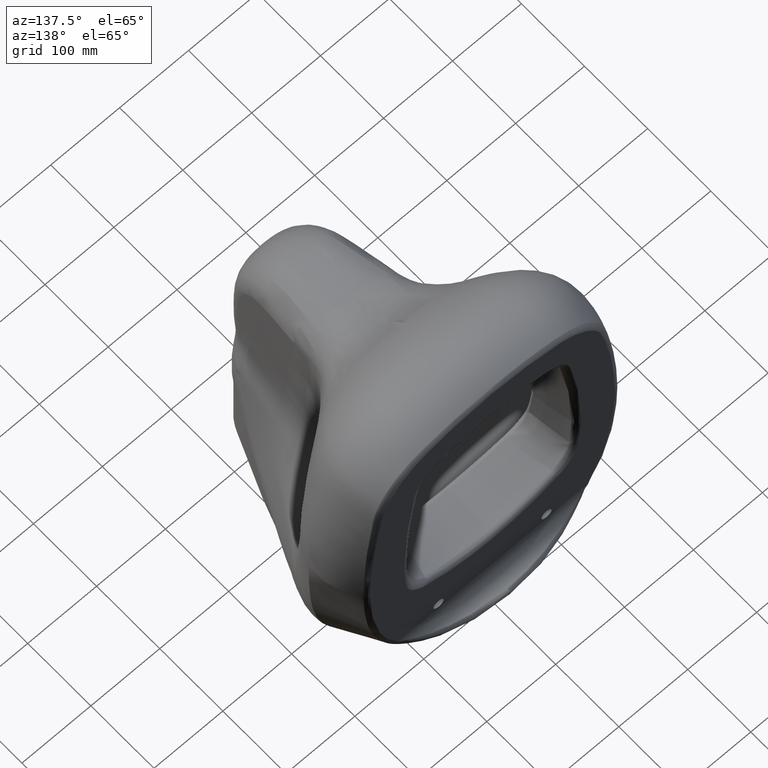
[diagram: clean part render]
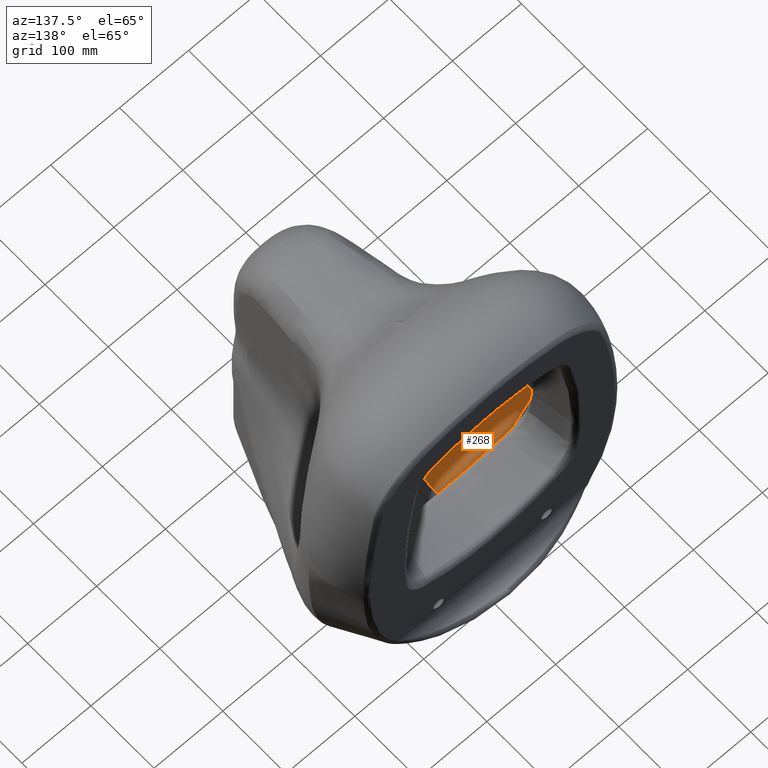
[diagram: same view with one face highlighted and labeled with its STEP entity id]
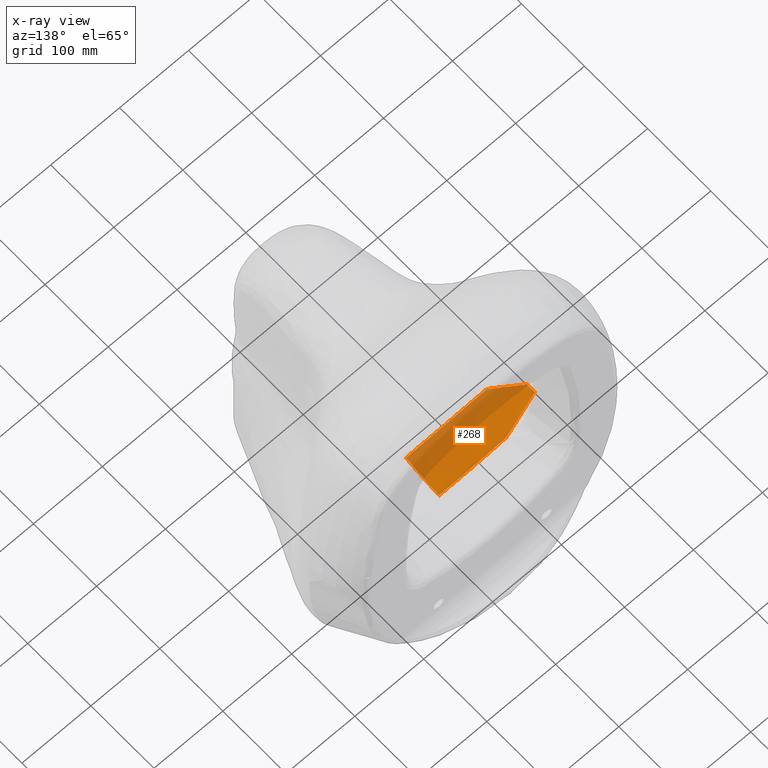
[diagram: x-ray of the same camera — body ghosted, the highlighted face saturated]
A machine part, auxiliary view. The second image highlights one B-rep face of the part: STEP entity #268.
The next image is the same camera in x-ray: the body ghosted, the highlighted face saturated — about 47% of this face is hidden behind the body in this view.
In plain terms, the highlighted face is a freeform B-spline surface patch.
Its self-contained STEP definition (entity closure, byte-faithful):
#268=ADVANCED_FACE('',(#488),#396,.T.);
#396=B_SPLINE_SURFACE_WITH_KNOTS('',3,3,((#16645,#16646,#16647,#16648,#16649,
#16650,#16651,#16652,#16653,#16654,#16655,#16656,#16657,#16658,#16659,#16660,
#16661,#16662,#16663,#16664,#16665,#16666,#16667),(#16668,#16669,#16670,
#16671,#16672,#16673,#16674,#16675,#16676,#16677,#16678,#16679,#16680,#16681,
#16682,#16683,#16684,#16685,#16686,#16687,#16688,#16689,#16690),(#16691,
#16692,#16693,#16694,#16695,#16696,#16697,#16698,#16699,#16700,#16701,#16702,
#16703,#16704,#16705,#16706,#16707,#16708,#16709,#16710,#16711,#16712,#16713),
(#16714,#16715,#16716,#16717,#16718,#16719,#16720,#16721,#16722,#16723,
#16724,#16725,#16726,#16727,#16728,#16729,#16730,#16731,#16732,#16733,#16734,
#16735,#16736),(#16737,#16738,#16739,#16740,#16741,#16742,#16743,#16744,
#16745,#16746,#16747,#16748,#16749,#16750,#16751,#16752,#16753,#16754,#16755,
#16756,#16757,#16758,#16759),(#16760,#16761,#16762,#16763,#16764,#16765,
#16766,#16767,#16768,#16769,#16770,#16771,#16772,#16773,#16774,#16775,#16776,
#16777,#16778,#16779,#16780,#16781,#16782),(#16783,#16784,#16785,#16786,
#16787,#16788,#16789,#16790,#16791,#16792,#16793,#16794,#16795,#16796,#16797,
#16798,#16799,#16800,#16801,#16802,#16803,#16804,#16805),(#16806,#16807,
#16808,#16809,#16810,#16811,#16812,#16813,#16814,#16815,#16816,#16817,#16818,
#16819,#16820,#16821,#16822,#16823,#16824,#16825,#16826,#16827,#16828),
(#16829,#16830,#16831,#16832,#16833,#16834,#16835,#16836,#16837,#16838,
#16839,#16840,#16841,#16842,#16843,#16844,#16845,#16846,#16847,#16848,#16849,
#16850,#16851),(#16852,#16853,#16854,#16855,#16856,#16857,#16858,#16859,
#16860,#16861,#16862,#16863,#16864,#16865,#16866,#16867,#16868,#16869,#16870,
#16871,#16872,#16873,#16874),(#16875,#16876,#16877,#16878,#16879,#16880,
#16881,#16882,#16883,#16884,#16885,#16886,#16887,#16888,#16889,#16890,#16891,
#16892,#16893,#16894,#16895,#16896,#16897),(#16898,#16899,#16900,#16901,
#16902,#16903,#16904,#16905,#16906,#16907,#16908,#16909,#16910,#16911,#16912,
#16913,#16914,#16915,#16916,#16917,#16918,#16919,#16920),(#16921,#16922,
#16923,#16924,#16925,#16926,#16927,#16928,#16929,#16930,#16931,#16932,#16933,
#16934,#16935,#16936,#16937,#16938,#16939,#16940,#16941,#16942,#16943),
(#16944,#16945,#16946,#16947,#16948,#16949,#16950,#16951,#16952,#16953,
#16954,#16955,#16956,#16957,#16958,#16959,#16960,#16961,#16962,#16963,#16964,
#16965,#16966),(#16967,#16968,#16969,#16970,#16971,#16972,#16973,#16974,
#16975,#16976,#16977,#16978,#16979,#16980,#16981,#16982,#16983,#16984,#16985,
#16986,#16987,#16988,#16989),(#16990,#16991,#16992,#16993,#16994,#16995,
#16996,#16997,#16998,#16999,#17000,#17001,#17002,#17003,#17004,#17005,#17006,
#17007,#17008,#17009,#17010,#17011,#17012),(#17013,#17014,#17015,#17016,
#17017,#17018,#17019,#17020,#17021,#17022,#17023,#17024,#17025,#17026,#17027,
#17028,#17029,#17030,#17031,#17032,#17033,#17034,#17035),(#17036,#17037,
#17038,#17039,#17040,#17041,#17042,#17043,#17044,#17045,#17046,#17047,#17048,
#17049,#17050,#17051,#17052,#17053,#17054,#17055,#17056,#17057,#17058),
(#17059,#17060,#17061,#17062,#17063,#17064,#17065,#17066,#17067,#17068,
#17069,#17070,#17071,#17072,#17073,#17074,#17075,#17076,#17077,#17078,#17079,
#17080,#17081),(#17082,#17083,#17084,#17085,#17086,#17087,#17088,#17089,
#17090,#17091,#17092,#17093,#17094,#17095,#17096,#17097,#17098,#17099,#17100,
#17101,#17102,#17103,#17104),(#17105,#17106,#17107,#17108,#17109,#17110,
#17111,#17112,#17113,#17114,#17115,#17116,#17117,#17118,#17119,#17120,#17121,
#17122,#17123,#17124,#17125,#17126,#17127),(#17128,#17129,#17130,#17131,
#17132,#17133,#17134,#17135,#17136,#17137,#17138,#17139,#17140,#17141,#17142,
#17143,#17144,#17145,#17146,#17147,#17148,#17149,#17150),(#17151,#17152,
#17153,#17154,#17155,#17156,#17157,#17158,#17159,#17160,#17161,#17162,#17163,
#17164,#17165,#17166,#17167,#17168,#17169,#17170,#17171,#17172,#17173),
(#17174,#17175,#17176,#17177,#17178,#17179,#17180,#17181,#17182,#17183,
#17184,#17185,#17186,#17187,#17188,#17189,#17190,#17191,#17192,#17193,#17194,
#17195,#17196),(#17197,#17198,#17199,#17200,#17201,#17202,#17203,#17204,
#17205,#17206,#17207,#17208,#17209,#17210,#17211,#17212,#17213,#17214,#17215,
#17216,#17217,#17218,#17219)),.UNSPECIFIED.,.F.,.F.,.F.,(4,1,1,1,1,1,1,
1,1,1,1,1,2,2,2,2,2,4),(4,2,2,2,2,2,1,1,1,2,2,2,4),(0.,0.00172506405028259,
0.00386850730206069,0.00494022892794975,0.0060119505538388,0.00708367217972785,
0.0081553938056169,0.010298837057395,0.0124422803091731,0.0145857235609512,
0.0167291668127293,0.0188726100645074,0.03125,0.0625,0.125,0.25,0.5,1.),
(0.,0.5,0.666666666666667,0.75,0.777777777777778,0.787037037037037,0.790113406413279,
0.793189775789522,0.795097293582978,0.796296296296296,0.805555555555555,
0.833333333333333,1.),.UNSPECIFIED.);
#488=FACE_OUTER_BOUND('',#637,.T.);
#637=EDGE_LOOP('',(#1018,#1019,#1020,#1021,#1022,#1023));
#1018=ORIENTED_EDGE('',*,*,#2321,.F.);
#1019=ORIENTED_EDGE('',*,*,#2333,.T.);
#1020=ORIENTED_EDGE('',*,*,#2335,.T.);
#1021=ORIENTED_EDGE('',*,*,#2336,.T.);
#1022=ORIENTED_EDGE('',*,*,#2337,.F.);
#1023=ORIENTED_EDGE('',*,*,#2338,.F.);
#1923=VERTEX_POINT('',#15624);
#1925=VERTEX_POINT('',#15630);
#1928=VERTEX_POINT('',#16591);
#1929=VERTEX_POINT('',#16616);
#1930=VERTEX_POINT('',#16632);
#1931=VERTEX_POINT('',#16637);
#2321=EDGE_CURVE('',#1923,#1925,#2815,.T.);
#2333=EDGE_CURVE('',#1923,#1928,#2822,.T.);
#2335=EDGE_CURVE('',#1928,#1929,#2824,.T.);
#2336=EDGE_CURVE('',#1929,#1930,#2825,.T.);
#2337=EDGE_CURVE('',#1931,#1930,#2826,.T.);
#2338=EDGE_CURVE('',#1925,#1931,#2827,.T.);
#2815=B_SPLINE_CURVE_WITH_KNOTS('',3,(#15626,#15627,#15628,#15629),
 .UNSPECIFIED.,.F.,.F.,(4,4),(0.,1.),.UNSPECIFIED.);
#2822=B_SPLINE_CURVE_WITH_KNOTS('',3,(#16587,#16588,#16589,#16590),
 .UNSPECIFIED.,.F.,.F.,(4,4),(0.,1.),.UNSPECIFIED.);
#2824=B_SPLINE_CURVE_WITH_KNOTS('',3,(#16612,#16613,#16614,#16615),
 .UNSPECIFIED.,.F.,.F.,(4,4),(0.,1.),.UNSPECIFIED.);
#2825=B_SPLINE_CURVE_WITH_KNOTS('',3,(#16617,#16618,#16619,#16620,#16621,
#16622,#16623,#16624,#16625,#16626,#16627,#16628,#16629,#16630,#16631),
 .UNSPECIFIED.,.F.,.F.,(4,2,2,1,1,1,2,2,4),(0.,0.25000000000002,0.375000000000032,
0.437500000000036,0.468750000000038,0.484375000000039,0.492187500000039,
0.500000000000039,1.),.UNSPECIFIED.);
#2826=B_SPLINE_CURVE_WITH_KNOTS('',3,(#16633,#16634,#16635,#16636),
 .UNSPECIFIED.,.F.,.F.,(4,4),(0.,1.),.UNSPECIFIED.);
#2827=B_SPLINE_CURVE_WITH_KNOTS('',3,(#16638,#16639,#16640,#16641,#16642,
#16643,#16644),.UNSPECIFIED.,.F.,.F.,(4,1,1,1,4),(0.,0.196244595979454,
0.570431441270327,0.944618286561199,1.),.UNSPECIFIED.);
#15624=CARTESIAN_POINT('',(-96.6796917836861,-83.6167965677604,131.947293405763));
#15626=CARTESIAN_POINT('',(-96.670303917473,-83.6193053576096,131.937685111232));
#15627=CARTESIAN_POINT('',(-64.7038128415456,-84.1777637505301,126.253205793809));
#15628=CARTESIAN_POINT('',(-32.478198077628,-84.688892927581,123.447074671174));
#15629=CARTESIAN_POINT('',(0.,-84.7130588866251,123.390651825376));
#15630=CARTESIAN_POINT('',(-4.41342831099006E-6,-84.7138917621588,123.390767214637));
#16587=CARTESIAN_POINT('',(-96.6766797129311,-83.6210140730452,131.938954699163));
#16588=CARTESIAN_POINT('',(-116.546116152598,-88.9460915725251,135.895564980267));
#16589=CARTESIAN_POINT('',(-134.771912631746,-93.8210673947518,140.24404053002));
#16590=CARTESIAN_POINT('',(-151.383646953813,-98.2727827650817,144.416044677054));
#16591=CARTESIAN_POINT('',(-151.383717961144,-98.270587177193,144.418104736713));
#16612=CARTESIAN_POINT('',(-151.391673551863,-98.2726975280466,144.418037709969));
#16613=CARTESIAN_POINT('',(-151.258292297123,-103.866963653753,144.442049623537));
#16614=CARTESIAN_POINT('',(-151.164385550273,-108.035330476261,144.613672258318));
#16615=CARTESIAN_POINT('',(-151.138217783084,-110.77685339802,144.765455068485));
#16616=CARTESIAN_POINT('',(-151.138217783083,-110.77685339802,144.765455068485));
#16617=CARTESIAN_POINT('',(-151.138217783084,-110.77685339802,144.765455068485));
#16618=CARTESIAN_POINT('',(-148.762933659037,-112.854626978728,144.36195222449));
#16619=CARTESIAN_POINT('',(-146.169582136459,-115.004322222876,143.986294965312));
#16620=CARTESIAN_POINT('',(-141.945699208007,-118.331707850247,143.504065524694));
#16621=CARTESIAN_POINT('',(-140.482099034542,-119.45791315954,143.356943700609));
#16622=CARTESIAN_POINT('',(-138.202501197928,-121.171779763985,143.162093250533));
#16623=CARTESIAN_POINT('',(-137.041654426943,-122.034848782459,143.071129822311));
#16624=CARTESIAN_POINT('',(-135.65035594581,-123.052225564078,142.97753348722));
#16625=CARTESIAN_POINT('',(-134.945445967578,-123.563491965068,142.934022420507));
#16626=CARTESIAN_POINT('',(-134.641355530191,-123.783154439081,142.916095886868));
#16627=CARTESIAN_POINT('',(-134.438187016369,-123.929717465187,142.904306962849));
#16628=CARTESIAN_POINT('',(-134.29042067449,-124.036126581929,142.895911616387));
#16629=CARTESIAN_POINT('',(-130.64622181497,-126.657949616425,142.691194236146));
#16630=CARTESIAN_POINT('',(-124.720782743385,-130.763835313001,142.415344697377));
#16631=CARTESIAN_POINT('',(-116.346737894514,-136.272469117401,142.857745050875));
#16632=CARTESIAN_POINT('',(-116.346737897709,-136.272469117325,142.857745051276));
#16633=CARTESIAN_POINT('',(-2.84240216296671E-14,-137.449785272266,135.436430618839));
#16634=CARTESIAN_POINT('',(-38.8920483898696,-137.585829829607,135.532783648961));
#16635=CARTESIAN_POINT('',(-77.9749497351466,-137.191398668927,138.047863945005));
#16636=CARTESIAN_POINT('',(-116.346737897709,-136.272469117325,142.857745051276));
#16637=CARTESIAN_POINT('',(-2.84240216296671E-14,-137.449785272266,135.436430618839));
#16638=CARTESIAN_POINT('',(1.35861191697791E-5,-84.713890855734,123.390769268267));
#16639=CARTESIAN_POINT('',(1.35939718008003E-5,-88.2247357307372,123.886266217132));
#16640=CARTESIAN_POINT('',(1.36154338565906E-5,-98.4158573364791,125.42440612559));
#16641=CARTESIAN_POINT('',(1.36426967552343E-5,-115.199202774218,128.563169040336));
#16642=CARTESIAN_POINT('',(1.36490112325059E-5,-129.225153972544,132.420430786436));
#16643=CARTESIAN_POINT('',(1.36435076706278E-5,-136.513790461444,135.083197971494));
#16644=CARTESIAN_POINT('',(1.36426503293338E-5,-137.449785269022,135.436430633404));
#16645=CARTESIAN_POINT('',(19106.2868383976,-213.211732485452,193.746372476639));
#16646=CARTESIAN_POINT('',(15060.2496255604,-213.451798356841,192.815559192758));
#16647=CARTESIAN_POINT('',(11014.2124127233,-213.691864228231,191.884745908877));
#16648=CARTESIAN_POINT('',(5619.49612894046,-214.01195205675,190.643661530369));
#16649=CARTESIAN_POINT('',(4270.81705799475,-214.091974013879,190.333390435742));
#16650=CARTESIAN_POINT('',(2247.79845157619,-214.212006949574,189.867983793802));
#16651=CARTESIAN_POINT('',(1573.45891610333,-214.252017928139,189.712848246488));
#16652=CARTESIAN_POINT('',(674.339535472856,-214.305365899559,189.50600085007));
#16653=CARTESIAN_POINT('',(449.559690315237,-214.318702892414,189.454289000966));
#16654=CARTESIAN_POINT('',(149.853230105079,-214.336485549554,189.385339868827));
#16655=CARTESIAN_POINT('',(74.9266150525395,-214.340931213838,189.368102585792));
#16656=CARTESIAN_POINT('',(-24.8942099534184,-214.346853940713,189.345138251794));
#16657=CARTESIAN_POINT('',(-74.6465981867919,-214.460993867677,188.89671364419));
#16658=CARTESIAN_POINT('',(-140.019901597531,-214.9026070097,187.164240469183));
#16659=CARTESIAN_POINT('',(-190.459826812335,-215.415634872944,185.182801617879));
#16660=CARTESIAN_POINT('',(-215.802775660634,-215.673399705874,184.187250906));
#16661=CARTESIAN_POINT('',(-301.121123836724,-216.541178348963,180.835677939041));
#16662=CARTESIAN_POINT('',(-376.658025418034,-217.309469242523,177.868350948306));
#16663=CARTESIAN_POINT('',(-678.805631743273,-220.382632816767,165.999042985368));
#16664=CARTESIAN_POINT('',(-905.416336487201,-222.687505497449,157.097062013165));
#16665=CARTESIAN_POINT('',(-2491.6912696947,-238.821614262226,94.7831952077421));
#16666=CARTESIAN_POINT('',(-3851.35549815828,-252.65085034632,41.3713093745224));
#16667=CARTESIAN_POINT('',(-5211.01972662185,-266.480086430414,-12.0405764586974));
#16668=CARTESIAN_POINT('',(19141.0806751232,-209.12799233519,189.096648791713));
#16669=CARTESIAN_POINT('',(15087.6753556854,-209.293395491372,188.477805791195));
#16670=CARTESIAN_POINT('',(11034.2700362475,-209.458798647554,187.858962790677));
#16671=CARTESIAN_POINT('',(5629.72961033036,-209.67933618913,187.033838789987));
#16672=CARTESIAN_POINT('',(4278.59450385107,-209.734470574524,186.827557789814));
#16673=CARTESIAN_POINT('',(2251.89184413214,-209.817172152615,186.518136289555));
#16674=CARTESIAN_POINT('',(1576.3242908925,-209.844739345312,186.414995789469));
#16675=CARTESIAN_POINT('',(675.567553239643,-209.881495602241,186.277475122687));
#16676=CARTESIAN_POINT('',(450.378368826428,-209.890684666473,186.243094955992));
#16677=CARTESIAN_POINT('',(150.126122942143,-209.902936752116,186.197254733731));
#16678=CARTESIAN_POINT('',(75.0630614710714,-209.905999773527,186.185794678166));
#16679=CARTESIAN_POINT('',(-24.9395439884331,-209.910080477347,186.17052704329));
#16680=CARTESIAN_POINT('',(-74.7946610845296,-209.988721827145,185.872208139804));
#16681=CARTESIAN_POINT('',(-140.236826706324,-210.292989181267,184.719623844999));
#16682=CARTESIAN_POINT('',(-190.631462160968,-210.64646061517,183.401380009518));
#16683=CARTESIAN_POINT('',(-215.951655700447,-210.824058191506,182.739043855173));
#16684=CARTESIAN_POINT('',(-301.193396952366,-211.421949618577,180.509254931861));
#16685=CARTESIAN_POINT('',(-376.662474322176,-211.951294910046,178.535103415241));
#16686=CARTESIAN_POINT('',(-678.538783801413,-214.068676075922,170.638497348762));
#16687=CARTESIAN_POINT('',(-904.946015910841,-215.656711950329,164.716042798903));
#16688=CARTESIAN_POINT('',(-2489.79664067683,-226.772963071178,123.258860949889));
#16689=CARTESIAN_POINT('',(-3848.2400333334,-236.301178317621,87.7241336507334));
#16690=CARTESIAN_POINT('',(-5206.68342598997,-245.829393564063,52.189406351578));
#16691=CARTESIAN_POINT('',(19219.1068860443,-199.970083915203,178.669505507139));
#16692=CARTESIAN_POINT('',(15149.1783689996,-199.968053717879,178.750265120766));
#16693=CARTESIAN_POINT('',(11079.249851955,-199.966023520555,178.831024734392));
#16694=CARTESIAN_POINT('',(5652.67849589539,-199.963316590789,178.938704219228));
#16695=CARTESIAN_POINT('',(4296.03565688049,-199.962639858348,178.965624090437));
#16696=CARTESIAN_POINT('',(2261.07139835816,-199.961624759686,179.00600389725));
#16697=CARTESIAN_POINT('',(1582.74997885071,-199.961286393465,179.019463832855));
#16698=CARTESIAN_POINT('',(678.321419507447,-199.960835238504,179.037410413661));
#16699=CARTESIAN_POINT('',(452.214279671631,-199.960722449764,179.041897058862));
#16700=CARTESIAN_POINT('',(150.738093223877,-199.960572064777,179.047879252464));
#16701=CARTESIAN_POINT('',(75.3690466119385,-199.96053446853,179.049374800864));
#16702=CARTESIAN_POINT('',(-25.0412069066636,-199.96048438101,179.051367242069));
#16703=CARTESIAN_POINT('',(-75.1266965245868,-199.959519118544,179.089664832541));
#16704=CARTESIAN_POINT('',(-140.723287697281,-199.955784469315,179.237498552408));
#16705=CARTESIAN_POINT('',(-191.016359521369,-199.951445877613,179.406489211775));
#16706=CARTESIAN_POINT('',(-216.285523605847,-199.949266003096,179.491396586597));
#16707=CARTESIAN_POINT('',(-301.355471557975,-199.941927342781,179.777241655817));
#16708=CARTESIAN_POINT('',(-376.672451121673,-199.935430033892,180.030315599731));
#16709=CARTESIAN_POINT('',(-677.940369376464,-199.909440798337,181.042611375388));
#16710=CARTESIAN_POINT('',(-903.891308067558,-199.889948871671,181.801833207131));
#16711=CARTESIAN_POINT('',(-2485.54787890521,-199.753505385007,187.116386029329));
#16712=CARTESIAN_POINT('',(-3841.25351105177,-199.636553825009,191.671717019784));
#16713=CARTESIAN_POINT('',(-5196.95914319833,-199.519602265011,196.227048010239));
#16714=CARTESIAN_POINT('',(19352.7804071644,-189.946128816186,164.106403836014));
#16715=CARTESIAN_POINT('',(15254.5445562354,-189.627026474439,165.047844924654));
#16716=CARTESIAN_POINT('',(11156.3087053065,-189.307924132692,165.989286013294));
#16717=CARTESIAN_POINT('',(5691.99423740129,-188.882454343696,167.244540798147));
#16718=CARTESIAN_POINT('',(4325.91562042498,-188.776086896447,167.558354494361));
#16719=CARTESIAN_POINT('',(2276.79769496051,-188.616535725574,168.029075038681));
#16720=CARTESIAN_POINT('',(1593.75838647236,-188.563352001949,168.185981886787));
#16721=CARTESIAN_POINT('',(683.039308488154,-188.49244037045,168.395191017596));
#16722=CARTESIAN_POINT('',(455.359538992103,-188.474712462575,168.447493300298));
#16723=CARTESIAN_POINT('',(151.786512997368,-188.451075252075,168.517229677235));
#16724=CARTESIAN_POINT('',(75.8932564986838,-188.44516594945,168.534663771469));
#16725=CARTESIAN_POINT('',(-25.2153745368327,-188.437293293481,168.557890306772));
#16726=CARTESIAN_POINT('',(-75.6827712000257,-188.285575276412,169.013905847923));
#16727=CARTESIAN_POINT('',(-141.596845952809,-187.698570605899,170.776224677036));
#16728=CARTESIAN_POINT('',(-191.860162085688,-187.016639469409,172.792153525137));
#16729=CARTESIAN_POINT('',(-217.114375772103,-186.67401116779,173.805033331394));
#16730=CARTESIAN_POINT('',(-302.133992435834,-185.520535267749,177.214945590938));
#16731=CARTESIAN_POINT('',(-377.406411015178,-184.499301296388,180.233923480881));
#16732=CARTESIAN_POINT('',(-678.496085332556,-180.414365410944,192.309835040653));
#16733=CARTESIAN_POINT('',(-904.313341070589,-177.350663496861,201.366768710482));
#16734=CARTESIAN_POINT('',(-2485.03413123682,-155.90475009828,264.765304399283));
#16735=CARTESIAN_POINT('',(-3839.93766566502,-137.522538613782,319.106906418256));
#16736=CARTESIAN_POINT('',(-5194.84120009322,-119.140327129285,373.448508437229));
#16737=CARTESIAN_POINT('',(19464.919172295,-181.04805572506,151.604539246223));
#16738=CARTESIAN_POINT('',(15342.9362887502,-180.465570403909,153.297168104747));
#16739=CARTESIAN_POINT('',(11220.9534052054,-179.883085082759,154.98979696327));
#16740=CARTESIAN_POINT('',(5724.9762271456,-179.106437987892,157.246635441302));
#16741=CARTESIAN_POINT('',(4350.98193263065,-178.912276214175,157.81084506081));
#16742=CARTESIAN_POINT('',(2289.99049085824,-178.6210335536,158.657159490072));
#16743=CARTESIAN_POINT('',(1602.99334360077,-178.523952666742,158.939264299826));
#16744=CARTESIAN_POINT('',(686.997147257471,-178.394511484264,159.315404046164));
#16745=CARTESIAN_POINT('',(457.998098171648,-178.362151188644,159.409438982749));
#16746=CARTESIAN_POINT('',(152.666032723882,-178.319004127818,159.534818898195));
#16747=CARTESIAN_POINT('',(76.3330163619412,-178.308217362612,159.566163877057));
#16748=CARTESIAN_POINT('',(-25.3614838246651,-178.293846717397,159.60792315909));
#16749=CARTESIAN_POINT('',(-76.1503641404228,-178.016902595288,160.428083213432));
#16750=CARTESIAN_POINT('',(-142.326208093288,-176.945391799872,163.597735101859));
#16751=CARTESIAN_POINT('',(-192.552112522814,-175.700603451183,167.223562692219));
#16752=CARTESIAN_POINT('',(-217.787529137655,-175.075174144668,169.045317240108));
#16753=CARTESIAN_POINT('',(-302.743864487644,-172.969634033602,175.178348156855));
#16754=CARTESIAN_POINT('',(-377.960256731853,-171.105486642741,180.608248789686));
#16755=CARTESIAN_POINT('',(-678.825825708691,-163.648897079294,202.327851321011));
#16756=CARTESIAN_POINT('',(-904.47500244132,-158.056454906709,218.617553219504));
#16757=CARTESIAN_POINT('',(-2484.01923956972,-118.909359698614,332.645466508956));
#16758=CARTESIAN_POINT('',(-3837.91429996549,-85.3547066631036,430.383677899916));
#16759=CARTESIAN_POINT('',(-5191.80936036127,-51.8000536275934,528.121889290875));
#16760=CARTESIAN_POINT('',(19541.3035080766,-174.001401161387,142.514545706654));
#16761=CARTESIAN_POINT('',(15403.145118131,-173.244769159113,144.777635939538));
#16762=CARTESIAN_POINT('',(11264.9867281853,-172.48813715684,147.040726172422));
#16763=CARTESIAN_POINT('',(5747.44220825783,-171.479294487142,150.058179816267));
#16764=CARTESIAN_POINT('',(4368.05607827595,-171.227083819717,150.812543227228));
#16765=CARTESIAN_POINT('',(2298.97688330313,-170.848767818581,151.94408834367));
#16766=CARTESIAN_POINT('',(1609.28381831219,-170.722662484868,152.321270049151));
#16767=CARTESIAN_POINT('',(689.69306499094,-170.554522039919,152.824178989792));
#16768=CARTESIAN_POINT('',(459.795376660626,-170.512486928681,152.949906224952));
#16769=CARTESIAN_POINT('',(153.265125553542,-170.456440113698,153.117542538499));
#16770=CARTESIAN_POINT('',(76.632562776771,-170.442428409952,153.159451616886));
#16771=CARTESIAN_POINT('',(-25.4610074897384,-170.423761347165,153.215284898249));
#16772=CARTESIAN_POINT('',(-76.4710900552658,-170.064018744189,154.311143021681));
#16773=CARTESIAN_POINT('',(-142.816032717682,-168.672156444589,158.546128559753));
#16774=CARTESIAN_POINT('',(-192.99135838038,-167.055211490854,163.390509799524));
#16775=CARTESIAN_POINT('',(-218.201362287033,-166.242796462907,165.824512336966));
#16776=CARTESIAN_POINT('',(-303.07214444042,-163.507759248698,174.018707779414));
#16777=CARTESIAN_POINT('',(-378.212791859162,-161.086284369174,181.273467721517));
#16778=CARTESIAN_POINT('',(-678.775381534134,-151.400384851077,210.292507489926));
#16779=CARTESIAN_POINT('',(-904.197323790363,-144.135960212504,232.056787316234));
#16780=CARTESIAN_POINT('',(-2482.15091958396,-93.2849877424958,384.406746100384));
#16781=CARTESIAN_POINT('',(-3834.68257312133,-49.6984399110601,514.992425058227));
#16782=CARTESIAN_POINT('',(-5187.21422665871,-6.11189207962431,645.578104016071));
#16783=CARTESIAN_POINT('',(19602.245380491,-166.239547043683,134.015617307904));
#16784=CARTESIAN_POINT('',(15451.1816528576,-165.355392345489,136.861455337254));
#16785=CARTESIAN_POINT('',(11300.1179252242,-164.471237647295,139.707293366605));
#16786=CARTESIAN_POINT('',(5765.36628837971,-163.29236471637,143.501744072405));
#16787=CARTESIAN_POINT('',(4381.67837916858,-162.997646483639,144.450356748855));
#16788=CARTESIAN_POINT('',(2306.14651535189,-162.555569134542,145.87327576353));
#16789=CARTESIAN_POINT('',(1614.30256074632,-162.408210018176,146.347582101755));
#16790=CARTESIAN_POINT('',(691.843954605565,-162.211731196355,146.979990552722));
#16791=CARTESIAN_POINT('',(461.229303070377,-162.1626114909,147.138092665464));
#16792=CARTESIAN_POINT('',(153.743101023459,-162.097118550293,147.348895482453));
#16793=CARTESIAN_POINT('',(76.8715505117295,-162.080745315141,147.4015961867));
#16794=CARTESIAN_POINT('',(-25.5404106610438,-162.058932107115,147.471806588874));
#16795=CARTESIAN_POINT('',(-76.7317966219663,-161.638558515179,148.847669231292));
#16796=CARTESIAN_POINT('',(-143.191662020407,-160.012111857146,154.164287955723));
#16797=CARTESIAN_POINT('',(-193.272153181494,-158.12264713281,160.245632791933));
#16798=CARTESIAN_POINT('',(-218.434508605063,-157.173307742326,163.301133180893));
#16799=CARTESIAN_POINT('',(-303.144879675502,-153.977307579145,173.587633287804));
#16800=CARTESIAN_POINT('',(-378.143506574109,-151.147717520958,182.694822571265));
#16801=CARTESIAN_POINT('',(-678.138014168535,-139.82935728821,219.123579705108));
#16802=CARTESIAN_POINT('',(-903.133894864354,-131.340587113648,246.44514755549));
#16803=CARTESIAN_POINT('',(-2478.10505973509,-71.9191958917183,437.696122508168));
#16804=CARTESIAN_POINT('',(-3828.08034391001,-20.9865748443499,601.625529610462));
#16805=CARTESIAN_POINT('',(-5178.05562808492,29.9460462030186,765.554936712757));
#16806=CARTESIAN_POINT('',(19662.1174437588,-155.001175511054,123.561101731134));
#16807=CARTESIAN_POINT('',(15498.3749262569,-154.011012963744,127.194918952921));
#16808=CARTESIAN_POINT('',(11334.6324087551,-153.020850416434,130.828736174707));
#16809=CARTESIAN_POINT('',(5782.97571875258,-151.700633686687,135.673825803756));
#16810=CARTESIAN_POINT('',(4395.06154625196,-151.37057950425,136.885098211018));
#16811=CARTESIAN_POINT('',(2313.19028750103,-150.875498230595,138.702006821911));
#16812=CARTESIAN_POINT('',(1619.23320125072,-150.710471139377,139.307643025542));
#16813=CARTESIAN_POINT('',(693.95708625031,-150.490435017752,140.115157963717));
#16814=CARTESIAN_POINT('',(462.638057500206,-150.435425987346,140.31703669826));
#16815=CARTESIAN_POINT('',(154.212685833402,-150.362080613471,140.586208344319));
#16816=CARTESIAN_POINT('',(77.106342916701,-150.343744270003,140.653501255833));
#16817=CARTESIAN_POINT('',(-25.6184199428021,-150.319315715058,140.743152095388));
#16818=CARTESIAN_POINT('',(-76.996066445892,-149.848540422609,142.495479620047));
#16819=CARTESIAN_POINT('',(-143.535087375049,-148.027087039765,149.265897077284));
#16820=CARTESIAN_POINT('',(-193.430424815623,-145.911080408434,157.009506490895));
#16821=CARTESIAN_POINT('',(-218.499751923863,-144.847917693737,160.900192221189));
#16822=CARTESIAN_POINT('',(-302.896938358805,-141.268725422018,173.998386980132));
#16823=CARTESIAN_POINT('',(-377.618286131712,-138.099874874052,185.594920077059));
#16824=CARTESIAN_POINT('',(-676.503677223343,-125.424472682187,231.981052464765));
#16825=CARTESIAN_POINT('',(-900.667720542066,-115.917921038288,266.770651755544));
#16826=CARTESIAN_POINT('',(-2469.81602377312,-49.3720595309943,510.297846791));
#16827=CARTESIAN_POINT('',(-3814.80028368546,7.66725033239984,719.035442535677));
#16828=CARTESIAN_POINT('',(-5159.7845435978,64.706560195794,927.773038280354));
#16829=CARTESIAN_POINT('',(19700.1193620419,-139.572973956424,112.09280479832));
#16830=CARTESIAN_POINT('',(15528.3293794919,-138.559784857599,116.721470385043));
#16831=CARTESIAN_POINT('',(11356.5393969418,-137.546595758774,121.350135971766));
#16832=CARTESIAN_POINT('',(5794.15275354174,-136.195676960341,127.521690087396));
#16833=CARTESIAN_POINT('',(4403.55609269172,-135.857947260732,129.064578616304));
#16834=CARTESIAN_POINT('',(2317.6611014167,-135.35135271132,131.378911409665));
#16835=CARTESIAN_POINT('',(1622.36277099169,-135.182487861516,132.150355674119));
#16836=CARTESIAN_POINT('',(695.298330425009,-134.957334728444,133.178948026724));
#16837=CARTESIAN_POINT('',(463.532220283339,-134.901046445175,133.436096114875));
#16838=CARTESIAN_POINT('',(154.510740094446,-134.825995400818,133.77896023241));
#16839=CARTESIAN_POINT('',(77.2553700472232,-134.807232639729,133.864676261794));
#16840=CARTESIAN_POINT('',(-25.6679338928634,-134.782235990807,133.978871261305));
#16841=CARTESIAN_POINT('',(-77.1824927016035,-134.300512666064,136.202908688426));
#16842=CARTESIAN_POINT('',(-143.694264976895,-132.436700793346,144.794174523853));
#16843=CARTESIAN_POINT('',(-193.26088487113,-130.271485740701,154.619210151897));
#16844=CARTESIAN_POINT('',(-218.165051703518,-129.183598831847,159.555684071988));
#16845=CARTESIAN_POINT('',(-302.006217526799,-125.521171281627,176.174578865867));
#16846=CARTESIAN_POINT('',(-376.235290482881,-122.27862808519,190.888176201863));
#16847=CARTESIAN_POINT('',(-673.151582307209,-109.308455299441,249.742565545848));
#16848=CARTESIAN_POINT('',(-895.838801175455,-99.58082571013,293.883357553838));
#16849=CARTESIAN_POINT('',(-2454.64933325318,-31.4874185849499,602.868901609761));
#16850=CARTESIAN_POINT('',(-3790.77264646265,26.8783589509187,867.713653657696));
#16851=CARTESIAN_POINT('',(-5126.89595967213,85.2441364867874,1132.55840570563));
#16852=CARTESIAN_POINT('',(19687.3927452174,-119.306479357604,101.116161816006));
#16853=CARTESIAN_POINT('',(15518.2978109361,-118.436703140548,106.928469224189));
#16854=CARTESIAN_POINT('',(11349.2028766548,-117.566926923493,112.740776632373));
#16855=CARTESIAN_POINT('',(5790.40963094631,-116.407225300753,120.490519843284));
#16856=CARTESIAN_POINT('',(4400.7113195192,-116.117299895068,122.427955646011));
#16857=CARTESIAN_POINT('',(2316.16385237852,-115.68241178654,125.334109350103));
#16858=CARTESIAN_POINT('',(1621.31469666497,-115.537449083697,126.302827251467));
#16859=CARTESIAN_POINT('',(694.849155713557,-115.344165479907,127.594451119952));
#16860=CARTESIAN_POINT('',(463.232770475705,-115.29584457896,127.917357087074));
#16861=CARTESIAN_POINT('',(154.410923491902,-115.23141671103,128.347898376569));
#16862=CARTESIAN_POINT('',(77.2054617459507,-115.215309744047,128.455533698942));
#16863=CARTESIAN_POINT('',(-25.6513519649407,-115.193851271228,128.598930630348));
#16864=CARTESIAN_POINT('',(-77.1773628229098,-114.78031396453,131.378662982036));
#16865=CARTESIAN_POINT('',(-143.460667799343,-113.180317239341,142.113788891181));
#16866=CARTESIAN_POINT('',(-192.489821627912,-111.321579753937,154.388678921325));
#16867=CARTESIAN_POINT('',(-217.123944939184,-110.387678904274,160.55605345306));
#16868=CARTESIAN_POINT('',(-300.055995280471,-107.243653387338,181.318838825065));
#16869=CARTESIAN_POINT('',(-373.480179626337,-104.460079266192,199.701244353616));
#16870=CARTESIAN_POINT('',(-667.176917009801,-93.3257827816051,273.230866467819));
#16871=CARTESIAN_POINT('',(-887.449470047399,-84.9750604181653,328.378083053472));
#16872=CARTESIAN_POINT('',(-2429.35734131058,-26.5200038740867,714.408599153041));
#16873=CARTESIAN_POINT('',(-3750.99265953617,23.5843303065521,1045.29189866696));
#16874=CARTESIAN_POINT('',(-5072.62797776176,73.6886644871909,1376.17519818087));
#16875=CARTESIAN_POINT('',(19640.6394235486,-98.2182176780134,91.8812594238647));
#16876=CARTESIAN_POINT('',(15481.4451926795,-97.5905642172975,98.859305224455));
#16877=CARTESIAN_POINT('',(11322.2509618104,-96.9629107565815,105.837351025045));
#16878=CARTESIAN_POINT('',(5776.65865398489,-96.1260394756269,115.141412092499));
#16879=CARTESIAN_POINT('',(4390.26057702852,-95.9168216553883,117.467427359363));
#16880=CARTESIAN_POINT('',(2310.66346159396,-95.6029949250303,120.956450259658));
#16881=CARTESIAN_POINT('',(1617.46442311577,-95.4983860149109,122.11945789309));
#16882=CARTESIAN_POINT('',(693.199038478187,-95.3589074680852,123.670134737665));
#16883=CARTESIAN_POINT('',(462.132692318791,-95.3240378313787,124.057803948809));
#16884=CARTESIAN_POINT('',(154.044230772931,-95.2775449824368,124.574696230334));
#16885=CARTESIAN_POINT('',(77.0221153864652,-95.2659217702013,124.703919300716));
#16886=CARTESIAN_POINT('',(-25.5904355233794,-95.250436770195,124.876076463911));
#16887=CARTESIAN_POINT('',(-77.0382841427771,-94.952017341564,128.199831355671));
#16888=CARTESIAN_POINT('',(-142.980792758398,-93.797417500607,141.033082227778));
#16889=CARTESIAN_POINT('',(-191.394166177292,-92.4561035021195,155.705080913459));
#16890=CARTESIAN_POINT('',(-215.718897843796,-91.7821760149472,163.076854575098));
#16891=CARTESIAN_POINT('',(-297.609365209516,-89.5133642701032,187.894311916146));
#16892=CARTESIAN_POINT('',(-370.111380380801,-87.5046637603008,209.86653562587));
#16893=CARTESIAN_POINT('',(-660.119441065939,-79.4698617210914,297.755430464764));
#16894=CARTESIAN_POINT('',(-877.625486579792,-73.4437601916844,363.672101593935));
#16895=CARTESIAN_POINT('',(-2400.16780517677,-31.2610494858353,825.088799498131));
#16896=CARTESIAN_POINT('',(-3705.20407825989,4.89555969060674,1220.58882627316));
#16897=CARTESIAN_POINT('',(-5010.24035134301,41.0521688670488,1616.08885304818));
#16898=CARTESIAN_POINT('',(19575.2623756263,-76.7313388877531,83.6294626509798));
#16899=CARTESIAN_POINT('',(15429.9126960819,-76.3995617820294,91.7603968185661));
#16900=CARTESIAN_POINT('',(11284.5630165375,-76.0677846763058,99.8913309861524));
#16901=CARTESIAN_POINT('',(5757.43011047833,-75.6254152020076,110.732576542934));
#16902=CARTESIAN_POINT('',(4375.64688396353,-75.5148228334331,113.44288793213));
#16903=CARTESIAN_POINT('',(2302.97204419133,-75.3489342805713,117.508355015923));
#16904=CARTESIAN_POINT('',(1612.08043093393,-75.293638096284,118.86351071052));
#16905=CARTESIAN_POINT('',(690.891613257399,-75.2199098505676,120.670384969984));
#16906=CARTESIAN_POINT('',(460.594408838266,-75.2014777891385,121.12210353485));
#16907=CARTESIAN_POINT('',(153.531469612755,-75.1769017072331,121.724394954671));
#16908=CARTESIAN_POINT('',(76.7657348063777,-75.1707576867567,121.874967809626));
#16909=CARTESIAN_POINT('',(-25.505253615933,-75.1625723284248,122.075568178329));
#16910=CARTESIAN_POINT('',(-76.8257764357435,-75.004828062558,125.935521489645));
#16911=CARTESIAN_POINT('',(-142.366485896103,-74.3945075310875,140.836326423));
#16912=CARTESIAN_POINT('',(-190.122517891123,-73.6854900486774,157.870234727688));
#16913=CARTESIAN_POINT('',(-214.116976068715,-73.3292525302286,166.428722176151));
#16914=CARTESIAN_POINT('',(-294.895560650433,-72.1299604977846,195.241312863981));
#16915=CARTESIAN_POINT('',(-366.41316646288,-71.0681630514135,220.750642024893));
#16916=CARTESIAN_POINT('',(-652.483589712667,-66.8209732659291,322.787958668542));
#16917=CARTESIAN_POINT('',(-867.036407150008,-63.6355809268158,399.315946151279));
#16918=CARTESIAN_POINT('',(-2368.90612921139,-41.3378345530227,935.011858530436));
#16919=CARTESIAN_POINT('',(-3656.22303383544,-22.2254805183429,1394.17978342686));
#16920=CARTESIAN_POINT('',(-4943.53993845948,-3.11312648366308,1853.34770832328));
#16921=CARTESIAN_POINT('',(19376.6352992195,-20.4728281353466,63.8154646862105));
#16922=CARTESIAN_POINT('',(15273.3478240907,-20.9918359675251,74.9109912671986));
#16923=CARTESIAN_POINT('',(11170.0603489618,-21.5108437997035,86.0065178481868));
#16924=CARTESIAN_POINT('',(5699.01038212339,-22.2028542426082,100.800553289504));
#16925=CARTESIAN_POINT('',(4331.24789041377,-22.3758568533343,104.499062149834));
#16926=CARTESIAN_POINT('',(2279.60415284935,-22.6353607694236,110.046825440328));
#16927=CARTESIAN_POINT('',(1595.72290699455,-22.7218620747867,111.896079870493));
#16928=CARTESIAN_POINT('',(683.881245854806,-22.8371971486041,114.361752444046));
#16929=CARTESIAN_POINT('',(455.920830569871,-22.8660309170585,114.978170587434));
#16930=CARTESIAN_POINT('',(151.973610189957,-22.9044759416643,115.800061445285));
#16931=CARTESIAN_POINT('',(75.9868050949784,-22.9140871978157,116.005534159747));
#16932=CARTESIAN_POINT('',(-25.2464558608105,-22.9268917735691,116.279274750584));
#16933=CARTESIAN_POINT('',(-76.1598120576636,-23.173655362398,121.515121094567));
#16934=CARTESIAN_POINT('',(-140.564070144792,-24.1283961502809,141.720667130271));
#16935=CARTESIAN_POINT('',(-186.552700516772,-25.2375312274607,164.814112264856));
#16936=CARTESIAN_POINT('',(-209.659148477529,-25.7948031386919,176.417142925278));
#16937=CARTESIAN_POINT('',(-287.448200731445,-27.670887853055,215.47934581688));
#16938=CARTESIAN_POINT('',(-356.319013514644,-29.3318860961828,250.063205425627));
#16939=CARTESIAN_POINT('',(-631.802264647444,-35.975879068694,388.398643860615));
#16940=CARTESIAN_POINT('',(-838.414702997043,-40.9588737980774,492.150222686857));
#16941=CARTESIAN_POINT('',(-2284.70177144424,-75.839836903761,1218.41127447055));
#16942=CARTESIAN_POINT('',(-3524.37640154184,-105.737805280061,1840.92074742799));
#16943=CARTESIAN_POINT('',(-4764.05103163943,-135.635773656361,2463.43022038544));
#16944=CARTESIAN_POINT('',(19147.9308808027,29.5856782837968,49.5763278291628));
#16945=CARTESIAN_POINT('',(15093.0749295739,28.1655888670296,63.2075400517444));
#16946=CARTESIAN_POINT('',(11038.2189783451,26.7454994502623,76.8387522743261));
#16947=CARTESIAN_POINT('',(5631.74437670668,24.8520468945727,95.013701904435));
#16948=CARTESIAN_POINT('',(4280.12572629708,24.3786837556502,99.5574393119622));
#16949=CARTESIAN_POINT('',(2252.69775068267,23.6686390472666,106.373045423253));
#16950=CARTESIAN_POINT('',(1576.88842547787,23.4319574778054,108.644914127017));
#16951=CARTESIAN_POINT('',(675.809325204802,23.1163820518571,111.674072398701));
#16952=CARTESIAN_POINT('',(450.539550136535,23.0374881953701,112.431361966623));
#16953=CARTESIAN_POINT('',(150.179850045512,22.9322963867206,113.441081390518));
#16954=CARTESIAN_POINT('',(75.0899250227557,22.9059984345583,113.693511246491));
#16955=CARTESIAN_POINT('',(-24.9484693468689,22.8709630432094,114.02981039015));
#16956=CARTESIAN_POINT('',(-75.3598401708496,22.195777931416,120.436875110439));
#16957=CARTESIAN_POINT('',(-138.593060393395,19.5834526338985,145.15681851931));
#16958=CARTESIAN_POINT('',(-182.921415748299,16.5486795758572,173.406161092185));
#16959=CARTESIAN_POINT('',(-205.193677998987,15.0238934456512,187.599711950435));
#16960=CARTESIAN_POINT('',(-280.174400911217,9.8906220678922,235.383035084135));
#16961=CARTESIAN_POINT('',(-346.55884937038,5.34586208201384,277.688169371648));
#16962=CARTESIAN_POINT('',(-612.096643207031,-12.8331778614996,446.9087065217));
#16963=CARTESIAN_POINT('',(-811.24998858452,-26.4674578191347,573.824109384239));
#16964=CARTESIAN_POINT('',(-2205.32340622694,-121.90741752258,1462.23192942201));
#16965=CARTESIAN_POINT('',(-3400.24347849187,-203.713097268391,2223.72434659724));
#16966=CARTESIAN_POINT('',(-4595.1635507568,-285.518777014201,2985.21676377247));
#16967=CARTESIAN_POINT('',(18460.7955963766,179.984897872096,6.79528572284887));
#16968=CARTESIAN_POINT('',(14551.4506465557,175.857536968371,28.0448862852803));
#16969=CARTESIAN_POINT('',(10642.1056967347,171.730176064646,49.2944868477117));
#16970=CARTESIAN_POINT('',(5429.64576364017,166.227028193012,77.6272875976202));
#16971=CARTESIAN_POINT('',(4126.53078036653,164.851241225104,84.7104877850974));
#16972=CARTESIAN_POINT('',(2171.85830545607,162.787560773241,95.3352880663131));
#16973=CARTESIAN_POINT('',(1520.30081381925,162.099667289287,98.8768881600516));
#16974=CARTESIAN_POINT('',(651.55749163682,161.182475977348,103.59902161837));
#16975=CARTESIAN_POINT('',(434.371661091214,160.953178149363,104.779554982949));
#16976=CARTESIAN_POINT('',(144.790553697071,160.64744771205,106.353599469055));
#16977=CARTESIAN_POINT('',(72.3952768485356,160.571015102722,106.747110590582));
#16978=CARTESIAN_POINT('',(-24.0531781695937,160.469187920016,107.271364952964));
#16979=CARTESIAN_POINT('',(-72.9563496139812,158.506823718836,117.197318716581));
#16980=CARTESIAN_POINT('',(-132.671223135031,150.914337515933,155.480628082687));
#16981=CARTESIAN_POINT('',(-172.011334038948,142.094045267486,199.220703529272));
#16982=CARTESIAN_POINT('',(-191.777311369034,137.662392874513,221.197391439567));
#16983=CARTESIAN_POINT('',(-258.320496457033,122.743005863857,295.183048046118));
#16984=CARTESIAN_POINT('',(-317.23474093496,109.534073759926,360.686511029053));
#16985=CARTESIAN_POINT('',(-552.891718846666,56.6983453442057,622.70036296079));
#16986=CARTESIAN_POINT('',(-729.634452280447,17.0715490324152,819.210751909593));
#16987=CARTESIAN_POINT('',(-1966.83358631691,-260.316025150118,2194.78347455121));
#16988=CARTESIAN_POINT('',(-3027.28998691959,-498.076803020861,3373.84580824403));
#16989=CARTESIAN_POINT('',(-4087.74638752227,-735.837580891604,4552.90814193685));
#16990=CARTESIAN_POINT('',(17968.6053078889,287.714826687091,-23.8484811355182));
#16991=CARTESIAN_POINT('',(14163.4888897477,281.648265797013,2.85811871044406));
#16992=CARTESIAN_POINT('',(10358.3724716065,275.581704906936,29.5647185564063));
#16993=CARTESIAN_POINT('',(5284.88391408496,267.492957053499,65.1735183510226));
#16994=CARTESIAN_POINT('',(4016.51177470457,265.47077009014,74.0757182996767));
#16995=CARTESIAN_POINT('',(2113.95356563398,262.437489645101,87.4290182226578));
#16996=CARTESIAN_POINT('',(1479.76749594379,261.426396163422,91.8801181969849));
#16997=CARTESIAN_POINT('',(634.186069690195,260.078271521182,97.8149181627543));
#16998=CARTESIAN_POINT('',(422.790713126796,259.741240360622,99.2986181541966));
#16999=CARTESIAN_POINT('',(140.930237708932,259.291865479876,101.276884809453));
#17000=CARTESIAN_POINT('',(70.465118854466,259.179521759689,101.771451473267));
#17001=CARTESIAN_POINT('',(-23.4118872436131,259.02985207522,102.430336868901));
#17002=CARTESIAN_POINT('',(-71.2347458230325,256.145490326105,114.876846704441));
#17003=CARTESIAN_POINT('',(-128.429451747893,244.985749045064,162.875502021571));
#17004=CARTESIAN_POINT('',(-164.196517385435,232.02132910602,217.711483114111));
#17005=CARTESIAN_POINT('',(-182.167260027298,225.507508358584,245.263178679826));
#17006=CARTESIAN_POINT('',(-242.666694677851,203.578393881301,338.017386928758));
#17007=CARTESIAN_POINT('',(-296.230083311347,184.163374750632,420.137653548211));
#17008=CARTESIAN_POINT('',(-510.483637845327,106.503298227958,748.618720026024));
#17009=CARTESIAN_POINT('',(-671.173803745812,48.2582408359522,994.979519884384));
#17010=CARTESIAN_POINT('',(-1796.00496504921,-359.457160908088,2719.5051188929));
#17011=CARTESIAN_POINT('',(-2760.14596045212,-708.927505260122,4197.66991804306));
#17012=CARTESIAN_POINT('',(-3724.28695585503,-1058.39784961216,5675.83471719321));
#17013=CARTESIAN_POINT('',(16492.0344424257,610.904613132041,-115.779781710619));
#17014=CARTESIAN_POINT('',(12999.6036193238,599.020452282914,-72.7021840140646));
#17015=CARTESIAN_POINT('',(9507.17279622185,587.136291433787,-29.6245863175099));
#17016=CARTESIAN_POINT('',(4850.59836541931,571.29074363495,27.8122106112298));
#17017=CARTESIAN_POINT('',(3686.45475771868,567.329356685241,42.1714098434147));
#17018=CARTESIAN_POINT('',(1940.23934616772,561.387276260678,63.7102086916921));
#17019=CARTESIAN_POINT('',(1358.16754231741,559.406582785823,70.8898083077845));
#17020=CARTESIAN_POINT('',(582.071803850317,556.765658152684,80.4626077959078));
#17021=CARTESIAN_POINT('',(388.047869233545,556.105426994399,82.8558076679386));
#17022=CARTESIAN_POINT('',(129.349289744514,555.225118783352,86.0467408306464));
#17023=CARTESIAN_POINT('',(64.6746448722573,555.005041730591,86.8444741213233));
#17024=CARTESIAN_POINT('',(-21.4880144656713,554.711844540832,87.9072526167118));
#17025=CARTESIAN_POINT('',(-66.0699344501866,549.061490147912,107.91543066802));
#17026=CARTESIAN_POINT('',(-115.70413758648,527.199983632456,185.060123838225));
#17027=CARTESIAN_POINT('',(-140.752067424894,501.80318062162,273.183821868626));
#17028=CARTESIAN_POINT('',(-153.337106002089,489.042854810797,317.460540400604));
#17029=CARTESIAN_POINT('',(-195.705289340308,446.084557933634,466.520403576678));
#17030=CARTESIAN_POINT('',(-233.216110440508,408.05127772275,598.491081105688));
#17031=CARTESIAN_POINT('',(-383.259394841308,255.918156879215,1126.37379122173));
#17032=CARTESIAN_POINT('',(-495.791858141908,141.818316246563,1522.28582380876));
#17033=CARTESIAN_POINT('',(-1283.51910124611,-656.880568181997,4293.67005191796));
#17034=CARTESIAN_POINT('',(-1958.71388104971,-1341.47961197791,6669.14224744014));
#17035=CARTESIAN_POINT('',(-2633.90866085331,-2026.07865577382,9044.61444296232));
#17036=CARTESIAN_POINT('',(15507.6538654502,826.364470762006,-177.067315427353));
#17037=CARTESIAN_POINT('',(12223.6801057078,810.601909940179,-123.075719163737));
#17038=CARTESIAN_POINT('',(8939.7063459654,794.839349118353,-69.0841229001206));
#17039=CARTESIAN_POINT('',(4561.07466630888,773.822601355917,2.90467211803459));
#17040=CARTESIAN_POINT('',(3466.41674639475,768.568414415308,20.9018708725734));
#17041=CARTESIAN_POINT('',(1824.42986652355,760.687134004395,47.8976690043816));
#17042=CARTESIAN_POINT('',(1277.10090656649,758.06004053409,56.896268381651));
#17043=CARTESIAN_POINT('',(547.328959957065,754.557249240351,68.8944008846769));
#17044=CARTESIAN_POINT('',(364.88597330471,753.681551416916,71.8939340104333));
#17045=CARTESIAN_POINT('',(121.628657768236,752.513954319003,75.893311511442));
#17046=CARTESIAN_POINT('',(60.8143288841183,752.222055044525,76.8931558866941));
#17047=CARTESIAN_POINT('',(-20.20543261371,751.83317285124,78.2251964485859));
#17048=CARTESIAN_POINT('',(-62.6267268682894,744.338823362449,103.274486643739));
#17049=CARTESIAN_POINT('',(-107.220594812204,715.342806690718,199.849871715994));
#17050=CARTESIAN_POINT('',(-125.122434117867,681.657748298686,310.165381038303));
#17051=CARTESIAN_POINT('',(-134.117003318617,664.733085778939,365.592114881122));
#17052=CARTESIAN_POINT('',(-164.397685781945,607.755333968523,552.189081341957));
#17053=CARTESIAN_POINT('',(-191.206795193282,557.309879704161,717.393366144005));
#17054=CARTESIAN_POINT('',(-298.443232838628,355.528062646719,1378.2105053522));
#17055=CARTESIAN_POINT('',(-378.870561072638,204.191699853637,1873.82335975834));
#17056=CARTESIAN_POINT('',(-941.861858710708,-855.162839697937,5343.11334060134));
#17057=CARTESIAN_POINT('',(-1424.42582811477,-1763.18101645643,8316.7904670382));
#17058=CARTESIAN_POINT('',(-1906.98979751883,-2671.19919321492,11290.4675934751));
#17059=CARTESIAN_POINT('',(12554.5121345238,1472.7440436519,-360.929916577556));
#17060=CARTESIAN_POINT('',(9895.90956485992,1445.34628291198,-274.196324612754));
#17061=CARTESIAN_POINT('',(7237.30699519606,1417.94852217205,-187.462732647953));
#17062=CARTESIAN_POINT('',(3692.50356897758,1381.41817451882,-71.817943361551));
#17063=CARTESIAN_POINT('',(2806.30271242296,1372.28558760551,-42.9067460399506));
#17064=CARTESIAN_POINT('',(1477.00142759103,1358.58670723555,0.460049942450121));
#17065=CARTESIAN_POINT('',(1033.90099931372,1354.02041377889,14.9156486032504));
#17066=CARTESIAN_POINT('',(443.10042827731,1347.93202250335,34.189780150984));
#17067=CARTESIAN_POINT('',(295.400285518206,1346.40992468447,39.0083130379174));
#17068=CARTESIAN_POINT('',(98.4667618394013,1344.38046092596,45.4330235538286));
#17069=CARTESIAN_POINT('',(49.2333809197009,1343.87309498633,47.0392011828065));
#17070=CARTESIAN_POINT('',(-16.3576870578263,1343.19715778246,49.1790279442083));
#17071=CARTESIAN_POINT('',(-52.2971041225975,1330.17082300606,89.3516545708964));
#17072=CARTESIAN_POINT('',(-81.7699664893769,1279.7712758655,244.219115349301));
#17073=CARTESIAN_POINT('',(-78.2335341967854,1221.22145132989,421.110058547333));
#17074=CARTESIAN_POINT('',(-76.4566952681996,1191.80377868337,509.986838322677));
#17075=CARTESIAN_POINT('',(-70.474875106857,1092.76766207319,809.195114637796));
#17076=CARTESIAN_POINT('',(-65.178849451604,1005.0856856484,1074.10022125896));
#17077=CARTESIAN_POINT('',(-43.9947468305908,654.357779949232,2133.7206477436));
#17078=CARTESIAN_POINT('',(-28.1066698648306,391.311850674859,2928.43596760708));
#17079=CARTESIAN_POINT('',(83.1098688954908,-1450.00965424576,8491.44320665146));
#17080=CARTESIAN_POINT('',(178.438330690052,-3028.285229892,13259.7351258324));
#17081=CARTESIAN_POINT('',(273.766792484613,-4606.56080553824,18028.0270450133));
#17082=CARTESIAN_POINT('',(10585.7509805728,1903.66375891183,-483.504984011024));
#17083=CARTESIAN_POINT('',(8344.06253762801,1868.50919822651,-374.943394912099));
#17084=CARTESIAN_POINT('',(6102.37409468317,1833.35463754118,-266.381805813175));
#17085=CARTESIAN_POINT('',(3113.45617075672,1786.48188996075,-121.633020347941));
#17086=CARTESIAN_POINT('',(2366.2266897751,1774.76370306564,-85.4458239816332));
#17087=CARTESIAN_POINT('',(1245.38246830269,1757.18642272298,-31.1650294321709));
#17088=CARTESIAN_POINT('',(871.767727811881,1751.32732927543,-13.0714312490167));
#17089=CARTESIAN_POINT('',(373.614740490807,1743.51520467869,11.0533663285221));
#17090=CARTESIAN_POINT('',(249.076493660537,1741.5621735295,17.0845657229068));
#17091=CARTESIAN_POINT('',(83.0254978868447,1738.95813199726,25.1261649154198));
#17092=CARTESIAN_POINT('',(41.5127489434227,1738.3071216142,27.136564713548));
#17093=CARTESIAN_POINT('',(-13.7925233539039,1737.43981440328,29.8149156079565));
#17094=CARTESIAN_POINT('',(-45.4106889588029,1720.72548943514,80.0697665223348));
#17095=CARTESIAN_POINT('',(-64.8028809408256,1656.05692198203,273.798611104839));
#17096=CARTESIAN_POINT('',(-46.9742675827311,1580.93058668402,495.073176886687));
#17097=CARTESIAN_POINT('',(-38.0164899012548,1543.18424061965,606.249987283713));
#17098=CARTESIAN_POINT('',(-7.85966799013173,1416.10921414297,980.532470168356));
#17099=CARTESIAN_POINT('',(18.8397810428478,1303.60288961122,1311.90479133559));
#17100=CARTESIAN_POINT('',(125.637577174768,853.577591484241,2637.39407600454));
#17101=CARTESIAN_POINT('',(205.735924273708,516.058617889006,3631.51103950625));
#17102=CARTESIAN_POINT('',(766.42435396629,-1846.57419727763,10590.3297840182));
#17103=CARTESIAN_POINT('',(1247.01443655993,-3871.68803884904,16555.0315650285));
#17104=CARTESIAN_POINT('',(1727.60451915357,-5896.80188042045,22519.7333460387));
#17105=CARTESIAN_POINT('',(4679.46751872006,3196.4229046916,-851.230186311429));
#17106=CARTESIAN_POINT('',(3688.52145593228,3137.99794417009,-677.184605810134));
#17107=CARTESIAN_POINT('',(2697.5753931445,3079.57298364857,-503.139025308839));
#17108=CARTESIAN_POINT('',(1376.31397609413,3001.67303628655,-271.078251307113));
#17109=CARTESIAN_POINT('',(1045.99862183154,2982.19804944604,-213.063057806681));
#17110=CARTESIAN_POINT('',(550.525590437647,2952.98556918529,-126.040267556034));
#17111=CARTESIAN_POINT('',(385.367913306355,2943.24807576503,-97.032670805818));
#17112=CARTESIAN_POINT('',(165.157677131296,2930.26475120469,-58.3558751388636));
#17113=CARTESIAN_POINT('',(110.10511808753,2927.01892006461,-48.686676222125));
#17114=CARTESIAN_POINT('',(36.7017060291748,2922.69114521117,-35.7944109998069));
#17115=CARTESIAN_POINT('',(18.3508530145881,2921.60920149781,-32.5713446942273));
#17116=CARTESIAN_POINT('',(-6.09703224213647,2920.16778426573,-28.2774214007988));
#17117=CARTESIAN_POINT('',(-24.7514434674192,2892.38948872237,52.22410237665));
#17118=CARTESIAN_POINT('',(-13.9016242951716,2784.9138603316,362.537098371452));
#17119=CARTESIAN_POINT('',(46.8035322594317,2660.05799274642,716.962531904748));
#17120=CARTESIAN_POINT('',(77.3041261995795,2597.3256264285,895.039434166823));
#17121=CARTESIAN_POINT('',(179.985953360044,2386.1338703523,1494.54453676003));
#17122=CARTESIAN_POINT('',(270.895672526203,2199.15450149969,2025.3185015655));
#17123=CARTESIAN_POINT('',(634.534549190843,1451.23702608927,4148.41436078735));
#17124=CARTESIAN_POINT('',(907.263706689324,890.29891953145,5740.73625520374));
#17125=CARTESIAN_POINT('',(2816.36780917869,-3036.26782637327,16886.9895161185));
#17126=CARTESIAN_POINT('',(4452.74275416957,-6401.89646572018,26440.9208826168));
#17127=CARTESIAN_POINT('',(6089.11769916046,-9767.52510506709,35994.8522491151));
#17128=CARTESIAN_POINT('',(741.945210818201,4058.26233521145,-1096.38032117837));
#17129=CARTESIAN_POINT('',(584.827401468462,3984.32377479914,-878.678746408824));
#17130=CARTESIAN_POINT('',(427.709592118721,3910.38521438683,-660.977171639282));
#17131=CARTESIAN_POINT('',(218.219179652401,3811.80046717041,-370.708405279894));
#17132=CARTESIAN_POINT('',(165.846576535822,3787.15428036631,-298.141213690047));
#17133=CARTESIAN_POINT('',(87.2876718609549,3750.18500016016,-189.290426305276));
#17134=CARTESIAN_POINT('',(61.1013703026713,3737.8619067581,-153.006830510352));
#17135=CARTESIAN_POINT('',(26.1863015582895,3721.43111555536,-104.628702783787));
#17136=CARTESIAN_POINT('',(17.4575343721923,3717.32341775468,-92.5341708521462));
#17137=CARTESIAN_POINT('',(5.81917812406164,3711.84648735377,-76.4081282766246));
#17138=CARTESIAN_POINT('',(2.90958906203172,3710.47725475354,-72.3766176327442));
#17139=CARTESIAN_POINT('',(-0.966704834291539,3708.65309750736,-67.0056460733023));
#17140=CARTESIAN_POINT('',(-10.97861313983,3673.49882158052,33.6603262795268));
#17141=CARTESIAN_POINT('',(20.0325468019311,3537.48515256464,421.696089882528));
#17142=CARTESIAN_POINT('',(109.32206548754,3379.47626345469,864.888768583455));
#17143=CARTESIAN_POINT('',(154.184536933469,3300.08655030107,1087.5657320889));
#17144=CARTESIAN_POINT('',(305.216367593495,3032.81697449185,1837.21924782115));
#17145=CARTESIAN_POINT('',(438.932933515107,2796.18890942534,2500.92764171877));
#17146=CARTESIAN_POINT('',(973.79919720156,1849.67664915929,5155.76121730922));
#17147=CARTESIAN_POINT('',(1374.9488949664,1139.79245395975,7146.88639900206));
#17148=CARTESIAN_POINT('',(4182.99677932029,-3829.39691243703,21084.762670852));
#17149=CARTESIAN_POINT('',(6589.89496590933,-8088.70208363427,33031.513761009));
#17150=CARTESIAN_POINT('',(8996.79315249838,-12348.0072548315,44978.2648511661));
#17151=CARTESIAN_POINT('',(-11070.6217128874,6643.780626771,-1831.83072577917));
#17152=CARTESIAN_POINT('',(-8726.25476192299,6523.3012666863,-1483.16116820489));
#17153=CARTESIAN_POINT('',(-6381.88781095862,6402.8219066016,-1134.49161063061));
#17154=CARTESIAN_POINT('',(-3256.06520967278,6242.18275982201,-669.598867198236));
#17155=CARTESIAN_POINT('',(-2474.60955935132,6202.02297312711,-553.375681340143));
#17156=CARTESIAN_POINT('',(-1302.42608386912,6141.78329308476,-379.040902553002));
#17157=CARTESIAN_POINT('',(-911.69825870838,6121.70339973731,-320.929309623955));
#17158=CARTESIAN_POINT('',(-390.727825160731,6094.93020860737,-243.447185718559));
#17159=CARTESIAN_POINT('',(-260.485216773822,6088.23691082489,-224.07665474221));
#17160=CARTESIAN_POINT('',(-86.828405591278,6079.31251378158,-198.249280107078));
#17161=CARTESIAN_POINT('',(-43.4142027956375,6077.08141452076,-191.792436448295));
#17162=CARTESIAN_POINT('',(14.4242773892433,6074.10903723226,-183.190320090813));
#17163=CARTESIAN_POINT('',(30.3398778429374,6016.82682015497,-22.0310020118429));
#17164=CARTESIAN_POINT('',(121.835060093239,5795.19902926379,599.173064415756));
#17165=CARTESIAN_POINT('',(296.877665171866,5537.73107557949,1308.66747861958));
#17166=CARTESIAN_POINT('',(384.825769135138,5408.36932191877,1665.14462585512));
#17167=CARTESIAN_POINT('',(680.907610293846,4972.86628691052,2865.24338100451));
#17168=CARTESIAN_POINT('',(943.044716481818,4587.29213320228,3927.75506217858));
#17169=CARTESIAN_POINT('',(1991.59314123371,3044.99551836934,8177.80178687484));
#17170=CARTESIAN_POINT('',(2778.00445979763,1888.27305724463,11365.336830397));
#17171=CARTESIAN_POINT('',(8282.88368974508,-6208.78417062831,33678.0821350525));
#17172=CARTESIAN_POINT('',(13001.3516011286,-13149.1189373766,52803.2923961857));
#17173=CARTESIAN_POINT('',(17719.8195125121,-20089.4537041248,71928.5026573189));
#17174=CARTESIAN_POINT('',(-18945.6663286911,8367.45948781069,-2322.13099551305));
#17175=CARTESIAN_POINT('',(-14933.6428708506,8215.95292794441,-1886.14944940227));
#17176=CARTESIAN_POINT('',(-10921.6194130102,8064.44636807812,-1450.1679032915));
#17177=CARTESIAN_POINT('',(-5572.25480255623,7862.43762158974,-868.859175143798));
#17178=CARTESIAN_POINT('',(-4234.91364994274,7811.93543496765,-723.531993106873));
#17179=CARTESIAN_POINT('',(-2228.90192102251,7736.1821550345,-505.541220051486));
#17180=CARTESIAN_POINT('',(-1560.23134471575,7710.93106172345,-432.877629033023));
#17181=CARTESIAN_POINT('',(-668.670576306745,7677.26293730872,-335.992841008406));
#17182=CARTESIAN_POINT('',(-445.780384204498,7668.84590620503,-311.771644002252));
#17183=CARTESIAN_POINT('',(-148.593461401504,7657.62319806679,-279.476714660713));
#17184=CARTESIAN_POINT('',(-74.2967307007503,7654.81752103223,-271.402982325329));
#17185=CARTESIAN_POINT('',(24.6849322049331,7651.07966371552,-260.64676943582));
#17186=CARTESIAN_POINT('',(57.8855384981157,7579.04548587127,-59.1585542060894));
#17187=CARTESIAN_POINT('',(189.703402287444,7300.34161372988,717.491047437907));
#17188=CARTESIAN_POINT('',(421.914731628083,6976.56761699602,1604.51995197699));
#17189=CARTESIAN_POINT('',(538.586590602917,6813.89116966391,2050.19722169926));
#17190=CARTESIAN_POINT('',(931.368438760747,6266.23249518962,3550.59280312674));
#17191=CARTESIAN_POINT('',(1279.11923845963,5781.36094905357,4878.97334248512));
#17192=CARTESIAN_POINT('',(2670.12243725514,3841.87476450937,10192.4954999186));
#17193=CARTESIAN_POINT('',(3713.37483635179,2387.26012610122,14177.6371179937));
#17194=CARTESIAN_POINT('',(11016.1416300283,-7795.04234275583,42073.6284445195));
#17195=CARTESIAN_POINT('',(17275.6560246081,-16522.7301732047,65984.4781529702));
#17196=CARTESIAN_POINT('',(23535.170419188,-25250.4180036536,89895.3278614208));
#17197=CARTESIAN_POINT('',(-26820.7109444948,10091.1383488504,-2812.43126524692));
#17198=CARTESIAN_POINT('',(-21141.0309797783,9908.60458920251,-2289.13773059965));
#17199=CARTESIAN_POINT('',(-15461.3510150617,9726.07082955464,-1765.84419595238));
#17200=CARTESIAN_POINT('',(-7888.44439543969,9482.69248335747,-1068.11948308936));
#17201=CARTESIAN_POINT('',(-5995.21774053417,9421.84789680818,-893.688304873604));
#17202=CARTESIAN_POINT('',(-3155.37775817589,9330.58101698424,-632.04153754997));
#17203=CARTESIAN_POINT('',(-2208.76443072311,9300.15872370959,-544.825948442091));
#17204=CARTESIAN_POINT('',(-946.613327452759,9259.59566601005,-428.538496298254));
#17205=CARTESIAN_POINT('',(-631.075551635174,9249.45490158518,-399.466633262295));
#17206=CARTESIAN_POINT('',(-210.358517211731,9235.933882352,-360.704149214349));
#17207=CARTESIAN_POINT('',(-105.179258605863,9232.55362754371,-351.013528202362));
#17208=CARTESIAN_POINT('',(34.945587020623,9228.05029019879,-338.103218780827));
#17209=CARTESIAN_POINT('',(85.431199153294,9141.26415158758,-96.2861064003358));
#17210=CARTESIAN_POINT('',(257.57174448165,8805.48419819597,835.809030460059));
#17211=CARTESIAN_POINT('',(546.9517980843,8415.40415841255,1900.37242533441));
#17212=CARTESIAN_POINT('',(692.347412070696,8219.41301740904,2435.24981754341));
#17213=CARTESIAN_POINT('',(1181.82926722765,7559.59870346873,4235.94222524898));
#17214=CARTESIAN_POINT('',(1615.19376043743,6975.42976490486,5830.19162279165));
#17215=CARTESIAN_POINT('',(3348.65173327658,4638.75401064941,12207.1892129623));
#17216=CARTESIAN_POINT('',(4648.74521290594,2886.24719495781,16989.9374055904));
#17217=CARTESIAN_POINT('',(13749.3995703115,-9381.30051488334,50469.1747539865));
#17218=CARTESIAN_POINT('',(21549.9604480877,-19896.3414090329,79165.6639097546));
#17219=CARTESIAN_POINT('',(29350.5213258638,-30411.3823031825,107862.153065523));